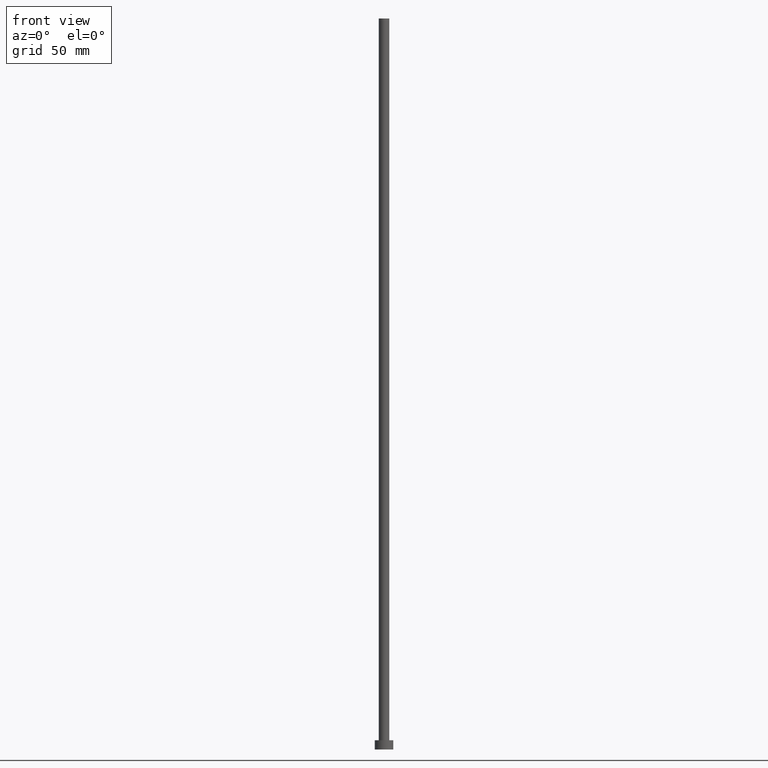
[diagram: clean part render]
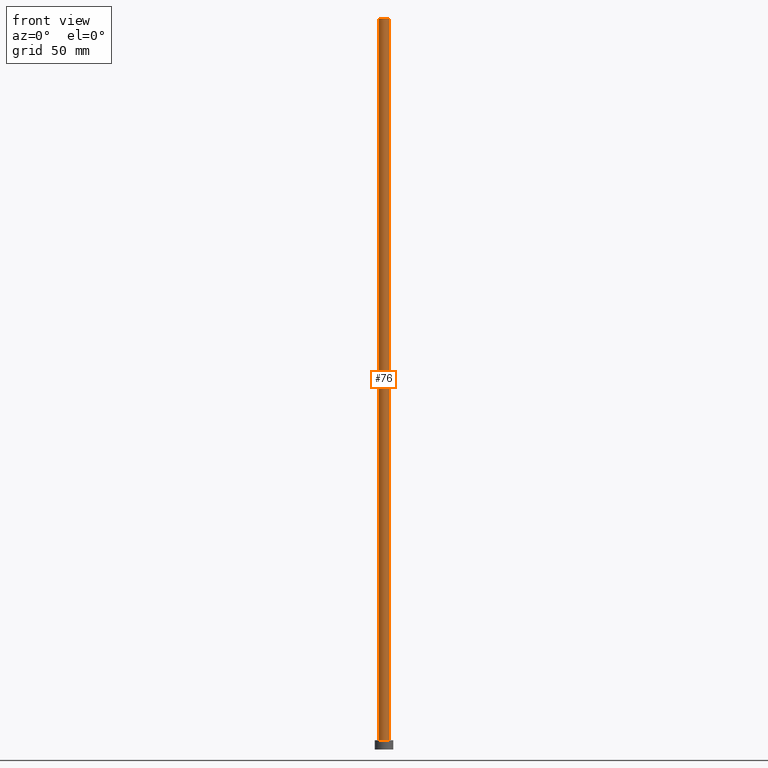
[diagram: same view with one face highlighted and labeled with its STEP entity id]
A machine part, front view. The second image highlights one B-rep face of the part: STEP entity #76.
In plain terms, the highlighted cylindrical surface (edge-blend (fillet) strip) has radius 2.25 mm, axis along (-0, -0, -1).
Its self-contained STEP definition (entity closure, byte-faithful):
#3 = CARTESIAN_POINT ( 'NONE',  ( 0.000000000000000000, 0.000000000000000000, 315.0000000000000000 ) ) ;
#7 = AXIS2_PLACEMENT_3D ( 'NONE', #65, #143, #218 ) ;
#12 = VECTOR ( 'NONE', #82, 1000.000000000000000 ) ;
#19 = CYLINDRICAL_SURFACE ( 'NONE', #190, 2.250000000000000000 ) ;
#21 = EDGE_LOOP ( 'NONE', ( #248, #79, #68, #164 ) ) ;
#26 = VECTOR ( 'NONE', #93, 1000.000000000000000 ) ;
#37 = VERTEX_POINT ( 'NONE', #230 ) ;
#43 = EDGE_CURVE ( 'NONE', #209, #37, #168, .T. ) ;
#47 = DIRECTION ( 'NONE',  ( 1.000000000000000000, 0.000000000000000000, 0.000000000000000000 ) ) ;
#60 = CARTESIAN_POINT ( 'NONE',  ( -2.250000000000000000, 0.000000000000000000, 315.0000000000000000 ) ) ;
#63 = AXIS2_PLACEMENT_3D ( 'NONE', #3, #201, #47 ) ;
#65 = CARTESIAN_POINT ( 'NONE',  ( 0.000000000000000000, 0.000000000000000000, 4.000000000000000000 ) ) ;
#66 = VERTEX_POINT ( 'NONE', #244 ) ;
#67 = CARTESIAN_POINT ( 'NONE',  ( 2.250000000000000000, 2.755455298081544285E-16, 315.0000000000000000 ) ) ;
#68 = ORIENTED_EDGE ( 'NONE', *, *, #43, .T. ) ;
#73 = LINE ( 'NONE', #67, #12 ) ;
#75 = EDGE_CURVE ( 'NONE', #66, #255, #73, .T. ) ;
#76 = ADVANCED_FACE ( 'NONE', ( #163 ), #19, .T. ) ;
#79 = ORIENTED_EDGE ( 'NONE', *, *, #90, .F. ) ;
#82 = DIRECTION ( 'NONE',  ( -0.000000000000000000, -0.000000000000000000, -1.000000000000000000 ) ) ;
#90 = EDGE_CURVE ( 'NONE', #209, #66, #225, .T. ) ;
#93 = DIRECTION ( 'NONE',  ( -0.000000000000000000, -0.000000000000000000, -1.000000000000000000 ) ) ;
#104 = CARTESIAN_POINT ( 'NONE',  ( 0.000000000000000000, 0.000000000000000000, 315.0000000000000000 ) ) ;
#119 = DIRECTION ( 'NONE',  ( -1.000000000000000000, 0.000000000000000000, 0.000000000000000000 ) ) ;
#122 = CARTESIAN_POINT ( 'NONE',  ( 2.250000000000000000, 2.755455298081544285E-16, 4.000000000000000000 ) ) ;
#143 = DIRECTION ( 'NONE',  ( 0.000000000000000000, 0.000000000000000000, 1.000000000000000000 ) ) ;
#152 = CIRCLE ( 'NONE', #7, 2.250000000000000000 ) ;
#161 = CARTESIAN_POINT ( 'NONE',  ( -2.250000000000000000, 0.000000000000000000, 315.0000000000000000 ) ) ;
#163 = FACE_OUTER_BOUND ( 'NONE', #21, .T. ) ;
#164 = ORIENTED_EDGE ( 'NONE', *, *, #249, .T. ) ;
#168 = LINE ( 'NONE', #60, #26 ) ;
#190 = AXIS2_PLACEMENT_3D ( 'NONE', #104, #198, #119 ) ;
#198 = DIRECTION ( 'NONE',  ( -0.000000000000000000, -0.000000000000000000, -1.000000000000000000 ) ) ;
#201 = DIRECTION ( 'NONE',  ( 0.000000000000000000, 0.000000000000000000, 1.000000000000000000 ) ) ;
#209 = VERTEX_POINT ( 'NONE', #161 ) ;
#218 = DIRECTION ( 'NONE',  ( 1.000000000000000000, 0.000000000000000000, 0.000000000000000000 ) ) ;
#225 = CIRCLE ( 'NONE', #63, 2.250000000000000000 ) ;
#230 = CARTESIAN_POINT ( 'NONE',  ( -2.250000000000000000, 0.000000000000000000, 4.000000000000000000 ) ) ;
#244 = CARTESIAN_POINT ( 'NONE',  ( 2.250000000000000000, 2.755455298081544285E-16, 315.0000000000000000 ) ) ;
#248 = ORIENTED_EDGE ( 'NONE', *, *, #75, .F. ) ;
#249 = EDGE_CURVE ( 'NONE', #37, #255, #152, .T. ) ;
#255 = VERTEX_POINT ( 'NONE', #122 ) ;